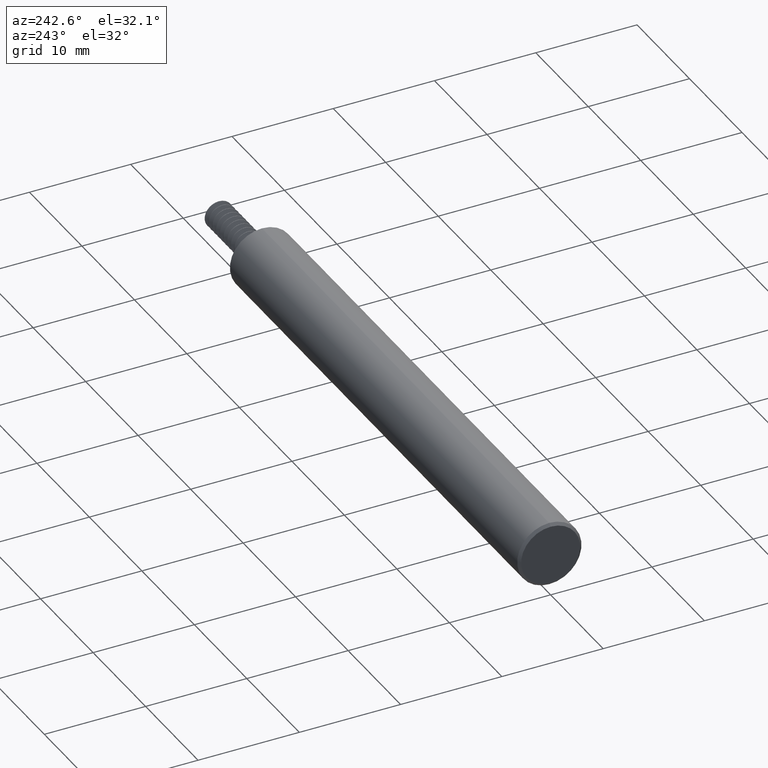
[diagram: clean part render]
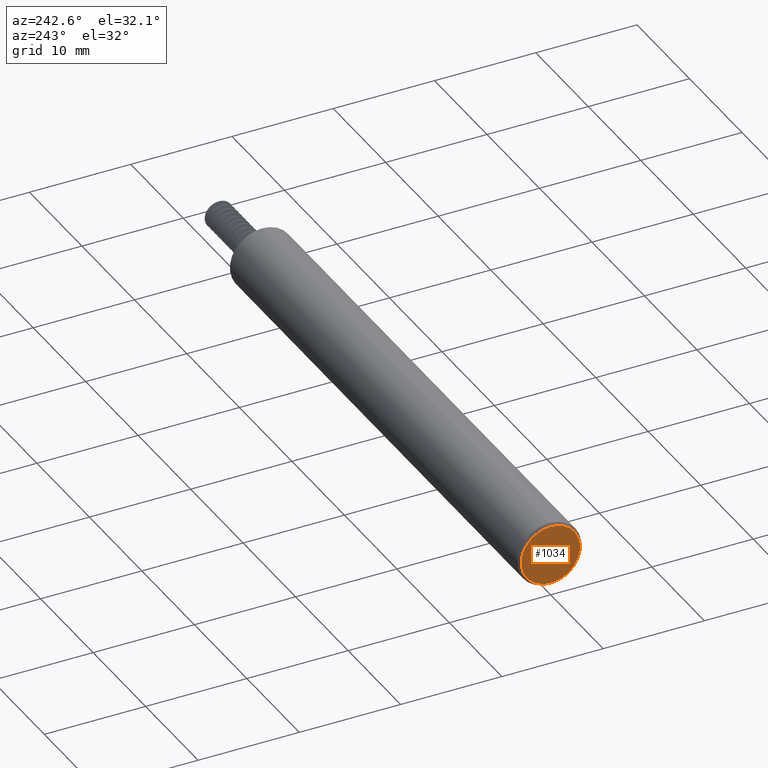
[diagram: same view with one face highlighted and labeled with its STEP entity id]
A machine part, auxiliary view. The second image highlights one B-rep face of the part: STEP entity #1034.
In plain terms, the highlighted planar face has unit normal (1, 0, 0).
Its self-contained STEP definition (entity closure, byte-faithful):
#18 = DIRECTION ( 'NONE',  ( -1.000000000000000000, -0.000000000000000000, -0.000000000000000000 ) ) ;
#102 = PLANE ( 'NONE',  #349 ) ;
#311 = FACE_OUTER_BOUND ( 'NONE', #1934, .T. ) ;
#349 = AXIS2_PLACEMENT_3D ( 'NONE', #1176, #2068, #1025 ) ;
#535 = CIRCLE ( 'NONE', #758, 0.1148500000000005489 ) ;
#758 = AXIS2_PLACEMENT_3D ( 'NONE', #1632, #1873, #1398 ) ;
#962 = EDGE_CURVE ( 'NONE', #2369, #2416, #535, .T. ) ;
#1025 = DIRECTION ( 'NONE',  ( 0.000000000000000000, 0.000000000000000000, -1.000000000000000000 ) ) ;
#1034 = ADVANCED_FACE ( 'NONE', ( #311 ), #102, .F. ) ;
#1169 = CIRCLE ( 'NONE', #2005, 0.1148500000000005489 ) ;
#1176 = CARTESIAN_POINT ( 'NONE',  ( 0.000000000000000000, 0.000000000000000000, 0.000000000000000000 ) ) ;
#1182 = EDGE_CURVE ( 'NONE', #2416, #2369, #1169, .T. ) ;
#1398 = DIRECTION ( 'NONE',  ( 0.000000000000000000, 0.000000000000000000, -1.000000000000000000 ) ) ;
#1479 = CARTESIAN_POINT ( 'NONE',  ( 0.000000000000000000, 0.000000000000000000, -0.1148500000000005489 ) ) ;
#1510 = CARTESIAN_POINT ( 'NONE',  ( 0.000000000000000000, 1.467739188778106286E-17, 0.1148500000000005489 ) ) ;
#1558 = CARTESIAN_POINT ( 'NONE',  ( 0.000000000000000000, 0.000000000000000000, 0.000000000000000000 ) ) ;
#1632 = CARTESIAN_POINT ( 'NONE',  ( 0.000000000000000000, 0.000000000000000000, 0.000000000000000000 ) ) ;
#1637 = ORIENTED_EDGE ( 'NONE', *, *, #1182, .T. ) ;
#1873 = DIRECTION ( 'NONE',  ( -1.000000000000000000, -0.000000000000000000, -0.000000000000000000 ) ) ;
#1921 = ORIENTED_EDGE ( 'NONE', *, *, #962, .T. ) ;
#1934 = EDGE_LOOP ( 'NONE', ( #1637, #1921 ) ) ;
#2005 = AXIS2_PLACEMENT_3D ( 'NONE', #1558, #18, #2451 ) ;
#2068 = DIRECTION ( 'NONE',  ( 1.000000000000000000, 0.000000000000000000, 0.000000000000000000 ) ) ;
#2369 = VERTEX_POINT ( 'NONE', #1510 ) ;
#2416 = VERTEX_POINT ( 'NONE', #1479 ) ;
#2451 = DIRECTION ( 'NONE',  ( 0.000000000000000000, 0.000000000000000000, -1.000000000000000000 ) ) ;